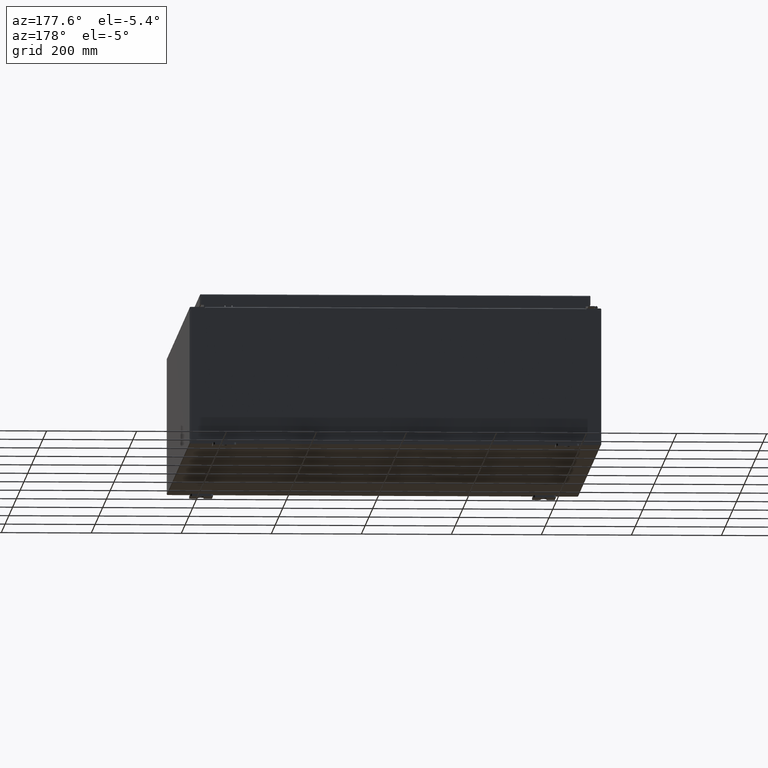
[diagram: clean part render]
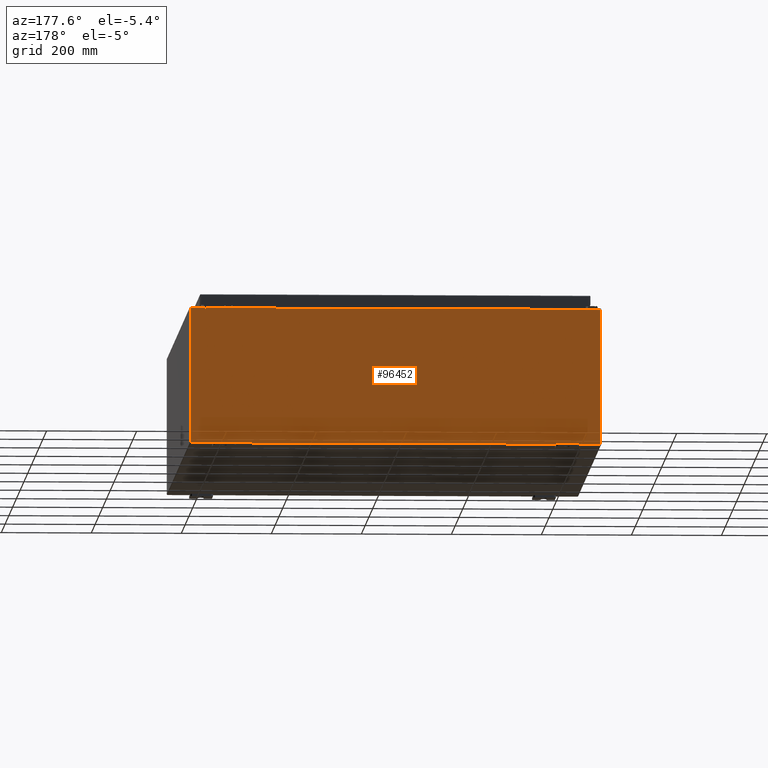
[diagram: same view with one face highlighted and labeled with its STEP entity id]
A machine part, auxiliary view. The second image highlights one B-rep face of the part: STEP entity #96452.
In plain terms, the highlighted planar face has unit normal (0, -1, 0).
Its self-contained STEP definition (entity closure, byte-faithful):
#121 = CARTESIAN_POINT ( 'NONE',  ( 16.67455000000000700, 0.0000000000000000000, 5.925300000000000000 ) ) ;
#1113 = DIRECTION ( 'NONE',  ( -8.681145560799821800E-014, 0.0000000000000000000, -1.000000000000000000 ) ) ;
#2424 = EDGE_CURVE ( 'NONE', #3623, #48833, #47828, .T. ) ;
#3623 = VERTEX_POINT ( 'NONE', #85429 ) ;
#4166 = VERTEX_POINT ( 'NONE', #72741 ) ;
#4638 = ORIENTED_EDGE ( 'NONE', *, *, #61204, .T. ) ;
#4690 = CARTESIAN_POINT ( 'NONE',  ( 16.63720000000000400, 0.0000000000000000000, 0.0000000000000000000 ) ) ;
#5253 = EDGE_CURVE ( 'NONE', #119754, #48833, #133605, .T. ) ;
#6037 = EDGE_CURVE ( 'NONE', #79985, #119754, #23218, .T. ) ;
#6222 = EDGE_CURVE ( 'NONE', #122941, #15250, #86460, .T. ) ;
#9607 = DIRECTION ( 'NONE',  ( 1.000000000000000000, 0.0000000000000000000, 3.048036009064577000E-017 ) ) ;
#11090 = ORIENTED_EDGE ( 'NONE', *, *, #75876, .T. ) ;
#12556 = VECTOR ( 'NONE', #108760, 39.37007874015748100 ) ;
#13932 = DIRECTION ( 'NONE',  ( 1.000000000000000000, 0.0000000000000000000, 3.048036009064577000E-017 ) ) ;
#14356 = LINE ( 'NONE', #87671, #66215 ) ;
#15250 = VERTEX_POINT ( 'NONE', #112367 ) ;
#20909 = EDGE_LOOP ( 'NONE', ( #89428, #77525, #104634, #105031, #102121, #51106, #73094, #11090, #4638, #39926, #38707, #70731 ) ) ;
#23218 = CIRCLE ( 'NONE', #121424, 0.01867499999999949400 ) ;
#28062 = CARTESIAN_POINT ( 'NONE',  ( -16.67455000000000000, -0.0000000000000000000, 0.0000000000000000000 ) ) ;
#28390 = VECTOR ( 'NONE', #13932, 39.37007874015748100 ) ;
#28617 = VECTOR ( 'NONE', #80977, 39.37007874015748100 ) ;
#29476 = VECTOR ( 'NONE', #71567, 39.37007874015748100 ) ;
#29572 = CARTESIAN_POINT ( 'NONE',  ( -17.92529999999999600, 0.0000000000000000000, -5.925300000000000000 ) ) ;
#30364 = CARTESIAN_POINT ( 'NONE',  ( 0.0000000000000000000, 0.0000000000000000000, 0.0000000000000000000 ) ) ;
#31924 = LINE ( 'NONE', #114057, #28617 ) ;
#32409 = DIRECTION ( 'NONE',  ( -0.0000000000000000000, 1.000000000000000000, -0.0000000000000000000 ) ) ;
#37731 = EDGE_CURVE ( 'NONE', #4166, #128352, #64407, .T. ) ;
#38195 = EDGE_CURVE ( 'NONE', #4166, #79985, #31924, .T. ) ;
#38309 = EDGE_CURVE ( 'NONE', #62305, #122941, #77320, .T. ) ;
#38707 = ORIENTED_EDGE ( 'NONE', *, *, #47675, .T. ) ;
#39926 = ORIENTED_EDGE ( 'NONE', *, *, #55899, .T. ) ;
#40377 = EDGE_CURVE ( 'NONE', #15250, #128352, #72096, .T. ) ;
#40774 = DIRECTION ( 'NONE',  ( 0.0000000000000000000, -1.000000000000000000, 0.0000000000000000000 ) ) ;
#41057 = CARTESIAN_POINT ( 'NONE',  ( -16.67455000000000000, 0.0000000000000000000, 5.925299999999999100 ) ) ;
#45278 = CARTESIAN_POINT ( 'NONE',  ( -17.92529999999999600, 0.0000000000000000000, -5.925300000000000000 ) ) ;
#46576 = CARTESIAN_POINT ( 'NONE',  ( -16.63720000000000000, 3.756290991288361700E-016, 5.912299999999999200 ) ) ;
#47675 = EDGE_CURVE ( 'NONE', #126504, #3623, #14356, .T. ) ;
#47828 = LINE ( 'NONE', #133772, #99797 ) ;
#48833 = VERTEX_POINT ( 'NONE', #41057 ) ;
#51106 = ORIENTED_EDGE ( 'NONE', *, *, #6222, .F. ) ;
#55895 = CARTESIAN_POINT ( 'NONE',  ( 16.65587500000000500, 0.0000000000000000000, 5.874949999999999200 ) ) ;
#55899 = EDGE_CURVE ( 'NONE', #132771, #126504, #56737, .T. ) ;
#55977 = LINE ( 'NONE', #76058, #28390 ) ;
#56737 = LINE ( 'NONE', #29572, #81127 ) ;
#58529 = AXIS2_PLACEMENT_3D ( 'NONE', #30364, #40774, #113353 ) ;
#60204 = FACE_OUTER_BOUND ( 'NONE', #20909, .T. ) ;
#61145 = CARTESIAN_POINT ( 'NONE',  ( 17.92530000000000400, 0.0000000000000000000, 5.925300000000000000 ) ) ;
#61204 = EDGE_CURVE ( 'NONE', #86637, #132771, #84707, .T. ) ;
#62305 = VERTEX_POINT ( 'NONE', #121 ) ;
#64407 = LINE ( 'NONE', #46576, #12556 ) ;
#66215 = VECTOR ( 'NONE', #76814, 39.37007874015748100 ) ;
#66305 = DIRECTION ( 'NONE',  ( 0.0000000000000000000, 0.0000000000000000000, -1.000000000000000000 ) ) ;
#69178 = CARTESIAN_POINT ( 'NONE',  ( 16.63720000000000400, 0.0000000000000000000, 5.912299999999999200 ) ) ;
#70731 = ORIENTED_EDGE ( 'NONE', *, *, #2424, .T. ) ;
#71567 = DIRECTION ( 'NONE',  ( 0.0000000000000000000, 0.0000000000000000000, -1.000000000000000000 ) ) ;
#72096 = LINE ( 'NONE', #4690, #120729 ) ;
#72741 = CARTESIAN_POINT ( 'NONE',  ( -16.63720000000000000, 3.756290991288361700E-016, 5.912299999999999200 ) ) ;
#73094 = ORIENTED_EDGE ( 'NONE', *, *, #38309, .F. ) ;
#73691 = CARTESIAN_POINT ( 'NONE',  ( 16.67454999999949500, -0.0000000000000000000, -1.447541957108302900E-012 ) ) ;
#75876 = EDGE_CURVE ( 'NONE', #62305, #86637, #55977, .T. ) ;
#76058 = CARTESIAN_POINT ( 'NONE',  ( -17.92529999999999600, 0.0000000000000000000, 5.925299999999999100 ) ) ;
#76814 = DIRECTION ( 'NONE',  ( -0.0000000000000000000, -0.0000000000000000000, 1.000000000000000000 ) ) ;
#77320 = LINE ( 'NONE', #73691, #104905 ) ;
#77525 = ORIENTED_EDGE ( 'NONE', *, *, #6037, .F. ) ;
#79756 = DIRECTION ( 'NONE',  ( 0.0000000000000000000, 0.0000000000000000000, 1.000000000000000000 ) ) ;
#79985 = VERTEX_POINT ( 'NONE', #129243 ) ;
#80977 = DIRECTION ( 'NONE',  ( 0.0000000000000000000, 0.0000000000000000000, -1.000000000000000000 ) ) ;
#81127 = VECTOR ( 'NONE', #102116, 39.37007874015748100 ) ;
#82564 = CARTESIAN_POINT ( 'NONE',  ( 17.92530000000000400, 0.0000000000000000000, -5.925300000000000000 ) ) ;
#84164 = AXIS2_PLACEMENT_3D ( 'NONE', #55895, #128451, #66305 ) ;
#84707 = LINE ( 'NONE', #61145, #29476 ) ;
#85134 = CARTESIAN_POINT ( 'NONE',  ( 17.92530000000000400, 0.0000000000000000000, 5.925300000000000000 ) ) ;
#85429 = CARTESIAN_POINT ( 'NONE',  ( -17.92529999999999600, 0.0000000000000000000, 5.925299999999999100 ) ) ;
#86460 = CIRCLE ( 'NONE', #84164, 0.01867499999999949400 ) ;
#86637 = VERTEX_POINT ( 'NONE', #85134 ) ;
#87671 = CARTESIAN_POINT ( 'NONE',  ( -17.92529999999999600, 0.0000000000000000000, 5.925299999999999100 ) ) ;
#89428 = ORIENTED_EDGE ( 'NONE', *, *, #5253, .F. ) ;
#92462 = PLANE ( 'NONE',  #58529 ) ;
#94520 = CARTESIAN_POINT ( 'NONE',  ( -16.65587499999999800, 0.0000000000000000000, 5.874949999999999200 ) ) ;
#96452 = ADVANCED_FACE ( 'NONE', ( #60204 ), #92462, .F. ) ;
#99797 = VECTOR ( 'NONE', #9607, 39.37007874015748100 ) ;
#102116 = DIRECTION ( 'NONE',  ( -1.000000000000000000, -0.0000000000000000000, -0.0000000000000000000 ) ) ;
#102121 = ORIENTED_EDGE ( 'NONE', *, *, #40377, .F. ) ;
#104634 = ORIENTED_EDGE ( 'NONE', *, *, #38195, .F. ) ;
#104905 = VECTOR ( 'NONE', #1113, 39.37007874015748100 ) ;
#104949 = DIRECTION ( 'NONE',  ( 0.0000000000000000000, 0.0000000000000000000, -1.000000000000000000 ) ) ;
#105031 = ORIENTED_EDGE ( 'NONE', *, *, #37731, .T. ) ;
#108760 = DIRECTION ( 'NONE',  ( 1.000000000000000000, 0.0000000000000000000, 0.0000000000000000000 ) ) ;
#112367 = CARTESIAN_POINT ( 'NONE',  ( 16.63720000000000400, 0.0000000000000000000, 5.874949999999999200 ) ) ;
#113353 = DIRECTION ( 'NONE',  ( 0.0000000000000000000, -0.0000000000000000000, -1.000000000000000000 ) ) ;
#114057 = CARTESIAN_POINT ( 'NONE',  ( -16.63720000000000000, -0.0000000000000000000, 0.0000000000000000000 ) ) ;
#119754 = VERTEX_POINT ( 'NONE', #131247 ) ;
#120729 = VECTOR ( 'NONE', #128917, 39.37007874015748100 ) ;
#121424 = AXIS2_PLACEMENT_3D ( 'NONE', #94520, #32409, #104949 ) ;
#122941 = VERTEX_POINT ( 'NONE', #130165 ) ;
#126504 = VERTEX_POINT ( 'NONE', #45278 ) ;
#128352 = VERTEX_POINT ( 'NONE', #69178 ) ;
#128451 = DIRECTION ( 'NONE',  ( -0.0000000000000000000, 1.000000000000000000, -0.0000000000000000000 ) ) ;
#128917 = DIRECTION ( 'NONE',  ( 0.0000000000000000000, 0.0000000000000000000, 1.000000000000000000 ) ) ;
#129243 = CARTESIAN_POINT ( 'NONE',  ( -16.63720000000000000, -0.0000000000000000000, 5.874949999999999200 ) ) ;
#130165 = CARTESIAN_POINT ( 'NONE',  ( 16.67455000000000400, 0.0000000000000000000, 5.874949999999999200 ) ) ;
#130360 = VECTOR ( 'NONE', #79756, 39.37007874015748100 ) ;
#131247 = CARTESIAN_POINT ( 'NONE',  ( -16.67455000000000000, 0.0000000000000000000, 5.874949999999999200 ) ) ;
#132771 = VERTEX_POINT ( 'NONE', #82564 ) ;
#133605 = LINE ( 'NONE', #28062, #130360 ) ;
#133772 = CARTESIAN_POINT ( 'NONE',  ( -17.92529999999999600, 0.0000000000000000000, 5.925299999999999100 ) ) ;